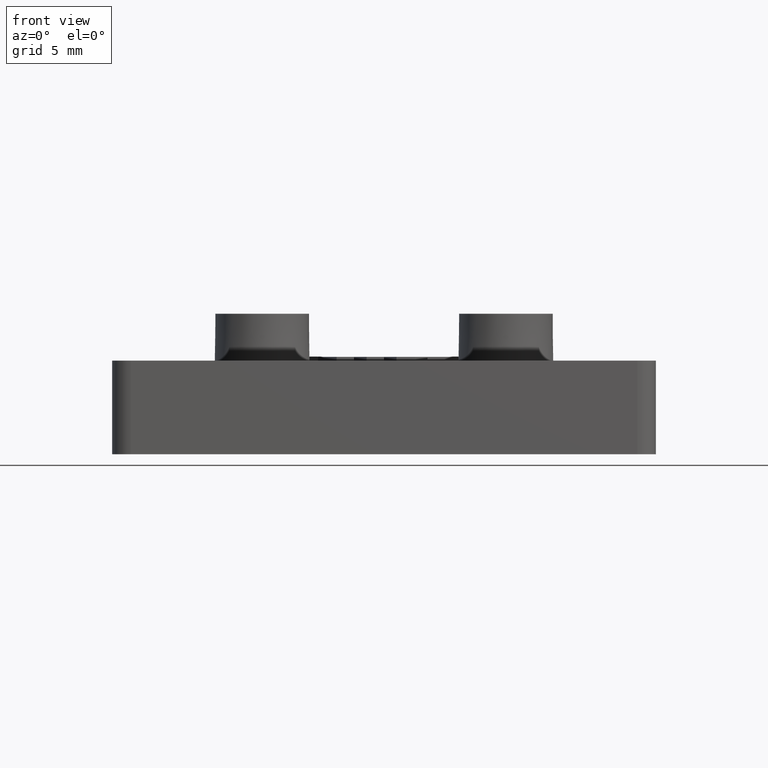
[diagram: clean part render]
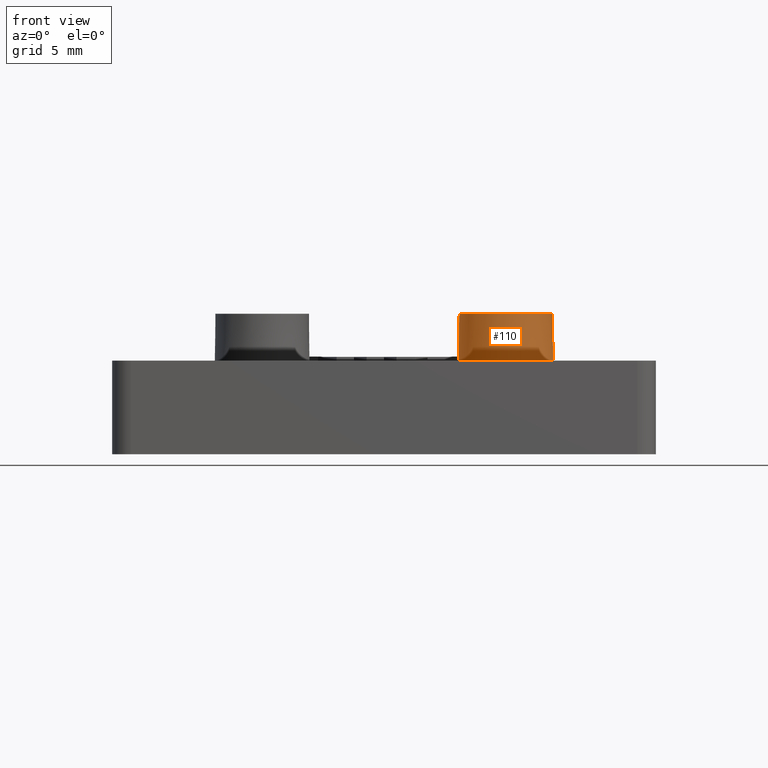
[diagram: same view with one face highlighted and labeled with its STEP entity id]
A machine part, front view. The second image highlights one B-rep face of the part: STEP entity #110.
In plain terms, the highlighted conical surface has half-angle 1 deg.
Its self-contained STEP definition (entity closure, byte-faithful):
#110 = ADVANCED_FACE( '', ( #368, #369 ), #370, .T. );
#368 = FACE_OUTER_BOUND( '', #784, .T. );
#369 = FACE_BOUND( '', #785, .T. );
#370 = CONICAL_SURFACE( '', #786, 2.50000000000000, 0.0174532925199433 );
#784 = EDGE_LOOP( '', ( #1511 ) );
#785 = EDGE_LOOP( '', ( #1512 ) );
#786 = AXIS2_PLACEMENT_3D( '', #1513, #1514, #1515 );
#1511 = ORIENTED_EDGE( '', *, *, #2652, .F. );
#1512 = ORIENTED_EDGE( '', *, *, #2873, .T. );
#1513 = CARTESIAN_POINT( '', ( 6.49999999999999, -0.000165124598782109, 7.49999999999999 ) );
#1514 = DIRECTION( '', ( 0.000000000000000, -6.12303176911189E-017, -1.00000000000000 ) );
#1515 = DIRECTION( '', ( 0.000000000000000, 1.00000000000000, -6.12303176911189E-017 ) );
#2652 = EDGE_CURVE( '', #3150, #3150, #3151, .T. );
#2873 = EDGE_CURVE( '', #3560, #3560, #3561, .T. );
#3150 = VERTEX_POINT( '', #3963 );
#3151 = CIRCLE( '', #3964, 2.54363766232054 );
#3560 = VERTEX_POINT( '', #4585 );
#3561 = CIRCLE( '', #4586, 2.50000000000000 );
#3963 = CARTESIAN_POINT( '', ( 6.49999999999999, 2.54347253772176, 4.99999999999999 ) );
#3964 = AXIS2_PLACEMENT_3D( '', #5198, #5199, #5200 );
#4585 = CARTESIAN_POINT( '', ( 8.99999999999999, -0.000165124598782109, 7.49999999999999 ) );
#4586 = AXIS2_PLACEMENT_3D( '', #5437, #5438, #5439 );
#5198 = CARTESIAN_POINT( '', ( 6.49999999999999, -0.000165124598782262, 4.99999999999999 ) );
#5199 = DIRECTION( '', ( 0.000000000000000, -6.12303176911189E-017, -1.00000000000000 ) );
#5200 = DIRECTION( '', ( 0.000000000000000, 1.00000000000000, -6.12303176911189E-017 ) );
#5437 = CARTESIAN_POINT( '', ( 6.49999999999999, -0.000165124598782109, 7.49999999999999 ) );
#5438 = DIRECTION( '', ( 0.000000000000000, -6.12303176911189E-017, -1.00000000000000 ) );
#5439 = DIRECTION( '', ( 1.00000000000000, 0.000000000000000, 0.000000000000000 ) );